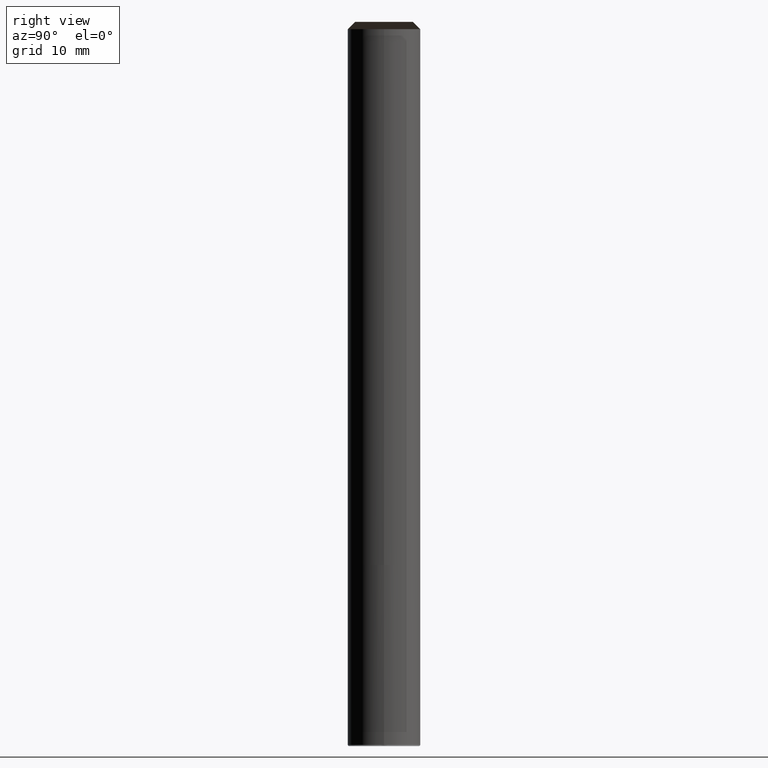
[diagram: clean part render]
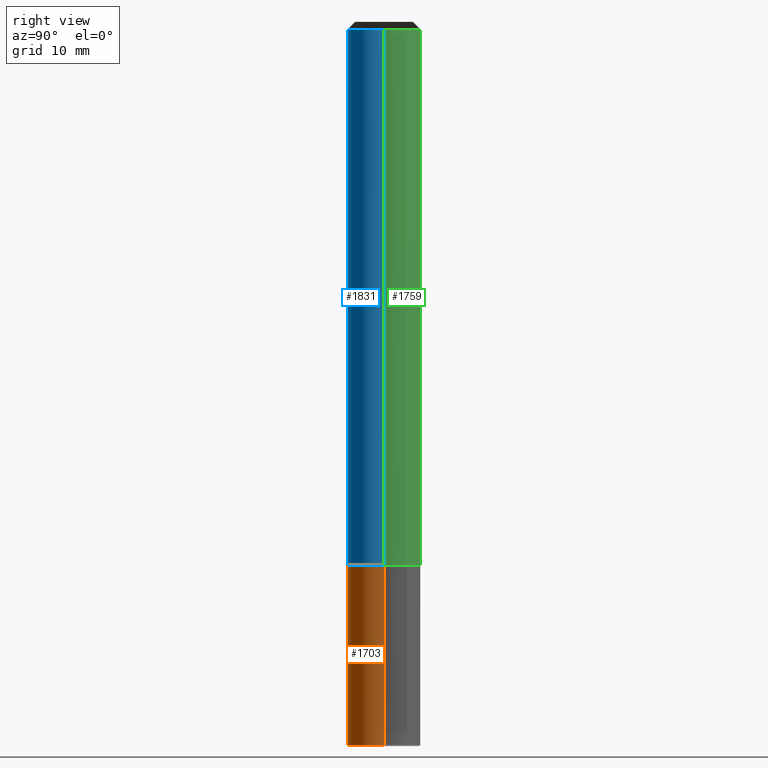
[diagram: same view with three faces highlighted in distinct colors, each labeled with its STEP entity id]
A machine part, right view with three faces highlighted in distinct colors.
Their STEP definitions:

[orange] entity #1703 — the highlighted face is a freeform B-spline surface patch.
#1521=CARTESIAN_POINT('',(3.0,0.0,-14.9));
#1525=CARTESIAN_POINT('',(-3.0,0.0,-14.9));
#1526=CARTESIAN_POINT('',(3.0,0.0,0.0));
#1530=CARTESIAN_POINT('',(-3.0,0.0,0.0));
#1544=CARTESIAN_POINT('',(-3.0,-3.0,-14.9));
#1545=CARTESIAN_POINT('',(0.0,-3.0,-14.9));
#1546=CARTESIAN_POINT('',(3.0,-3.0,-14.9));
#1547=CARTESIAN_POINT('',(-3.0,-3.0,0.0));
#1548=CARTESIAN_POINT('',(0.0,-3.0,0.0));
#1549=CARTESIAN_POINT('',(3.0,-3.0,0.0));
#1684=(
BOUNDED_SURFACE()
B_SPLINE_SURFACE(1,2,(
(#1525,#1544,#1545,#1546,#1521),
(#1530,#1547,#1548,#1549,#1526)
), .UNSPECIFIED.,.F.,.F.,.F.)
B_SPLINE_SURFACE_WITH_KNOTS((2,2),(3,2,3),(
0.0,1.0),(
0.0,0.5,1.0), .UNSPECIFIED.)
GEOMETRIC_REPRESENTATION_ITEM()
RATIONAL_B_SPLINE_SURFACE(((1.0,0.707106781187,1.0,0.707106781187,1.0),
(1.0,0.707106781187,1.0,0.707106781187,1.0)
))
REPRESENTATION_ITEM('')
SURFACE()
);
#1685=(
BOUNDED_CURVE()
B_SPLINE_CURVE(1,(#1530,#1525),.UNSPECIFIED.,.F.,.F.)
B_SPLINE_CURVE_WITH_KNOTS((2,2),
(0.0,1.0),.UNSPECIFIED.)
CURVE()
GEOMETRIC_REPRESENTATION_ITEM()
RATIONAL_B_SPLINE_CURVE((1.0,1.0))
REPRESENTATION_ITEM('')
);
#1686=(
BOUNDED_CURVE()
B_SPLINE_CURVE(2,(#1525,#1544,#1545,#1546,#1521),.UNSPECIFIED.,.F.,.F.)
B_SPLINE_CURVE_WITH_KNOTS((3,2,3),
(0.0,0.5,1.0),.UNSPECIFIED.)
CURVE()
GEOMETRIC_REPRESENTATION_ITEM()
RATIONAL_B_SPLINE_CURVE((1.0,0.707106781187,1.0,0.707106781187,1.0))
REPRESENTATION_ITEM('')
);
#1687=(
BOUNDED_CURVE()
B_SPLINE_CURVE(1,(#1521,#1526),.UNSPECIFIED.,.F.,.F.)
B_SPLINE_CURVE_WITH_KNOTS((2,2),
(0.0,1.0),.UNSPECIFIED.)
CURVE()
GEOMETRIC_REPRESENTATION_ITEM()
RATIONAL_B_SPLINE_CURVE((1.0,1.0))
REPRESENTATION_ITEM('')
);
#1688=(
BOUNDED_CURVE()
B_SPLINE_CURVE(2,(#1526,#1549,#1548,#1547,#1530),.UNSPECIFIED.,.F.,.F.)
B_SPLINE_CURVE_WITH_KNOTS((3,2,3),
(0.0,0.5,1.0),.UNSPECIFIED.)
CURVE()
GEOMETRIC_REPRESENTATION_ITEM()
RATIONAL_B_SPLINE_CURVE((1.0,0.707106781187,1.0,0.707106781187,1.0))
REPRESENTATION_ITEM('')
);
#1689=VERTEX_POINT('',#1521);
#1690=VERTEX_POINT('',#1525);
#1691=VERTEX_POINT('',#1526);
#1692=VERTEX_POINT('',#1530);
#1693=EDGE_CURVE('',#1692,#1690,#1685,.T.);
#1694=EDGE_CURVE('',#1690,#1689,#1686,.T.);
#1695=EDGE_CURVE('',#1689,#1691,#1687,.T.);
#1696=EDGE_CURVE('',#1691,#1692,#1688,.T.);
#1697=ORIENTED_EDGE('',*,*,#1693,.T.);
#1698=ORIENTED_EDGE('',*,*,#1694,.T.);
#1699=ORIENTED_EDGE('',*,*,#1695,.T.);
#1700=ORIENTED_EDGE('',*,*,#1696,.T.);
#1701=EDGE_LOOP('',(#1697,#1698,#1699,#1700));
#1702=FACE_OUTER_BOUND('',#1701,.T.);
#1703=ADVANCED_FACE('',(#1702),#1684,.T.);

[blue] entity #1831 — the highlighted face is a freeform B-spline surface patch.
#1526=CARTESIAN_POINT('',(3.0,0.0,0.0));
#1530=CARTESIAN_POINT('',(-3.0,0.0,0.0));
#1547=CARTESIAN_POINT('',(-3.0,-3.0,0.0));
#1548=CARTESIAN_POINT('',(0.0,-3.0,0.0));
#1549=CARTESIAN_POINT('',(3.0,-3.0,0.0));
#1550=CARTESIAN_POINT('',(3.0,0.0,44.4));
#1554=CARTESIAN_POINT('',(-3.0,0.0,44.4));
#1561=CARTESIAN_POINT('',(-3.0,-3.0,44.4));
#1562=CARTESIAN_POINT('',(0.0,-3.0,44.4));
#1563=CARTESIAN_POINT('',(3.0,-3.0,44.4));
#1812=(
BOUNDED_SURFACE()
B_SPLINE_SURFACE(1,2,(
(#1530,#1547,#1548,#1549,#1526),
(#1554,#1561,#1562,#1563,#1550)
), .UNSPECIFIED.,.F.,.F.,.F.)
B_SPLINE_SURFACE_WITH_KNOTS((2,2),(3,2,3),(
0.0,1.0),(
0.0,0.5,1.0), .UNSPECIFIED.)
GEOMETRIC_REPRESENTATION_ITEM()
RATIONAL_B_SPLINE_SURFACE(((1.0,0.707106781187,1.0,0.707106781187,1.0),
(1.0,0.707106781187,1.0,0.707106781187,1.0)
))
REPRESENTATION_ITEM('')
SURFACE()
);
#1813=(
BOUNDED_CURVE()
B_SPLINE_CURVE(1,(#1554,#1530),.UNSPECIFIED.,.F.,.F.)
B_SPLINE_CURVE_WITH_KNOTS((2,2),
(0.0,1.0),.UNSPECIFIED.)
CURVE()
GEOMETRIC_REPRESENTATION_ITEM()
RATIONAL_B_SPLINE_CURVE((1.0,1.0))
REPRESENTATION_ITEM('')
);
#1814=(
BOUNDED_CURVE()
B_SPLINE_CURVE(2,(#1530,#1547,#1548,#1549,#1526),.UNSPECIFIED.,.F.,.F.)
B_SPLINE_CURVE_WITH_KNOTS((3,2,3),
(0.0,0.5,1.0),.UNSPECIFIED.)
CURVE()
GEOMETRIC_REPRESENTATION_ITEM()
RATIONAL_B_SPLINE_CURVE((1.0,0.707106781187,1.0,0.707106781187,1.0))
REPRESENTATION_ITEM('')
);
#1815=(
BOUNDED_CURVE()
B_SPLINE_CURVE(1,(#1526,#1550),.UNSPECIFIED.,.F.,.F.)
B_SPLINE_CURVE_WITH_KNOTS((2,2),
(0.0,1.0),.UNSPECIFIED.)
CURVE()
GEOMETRIC_REPRESENTATION_ITEM()
RATIONAL_B_SPLINE_CURVE((1.0,1.0))
REPRESENTATION_ITEM('')
);
#1816=(
BOUNDED_CURVE()
B_SPLINE_CURVE(2,(#1550,#1563,#1562,#1561,#1554),.UNSPECIFIED.,.F.,.F.)
B_SPLINE_CURVE_WITH_KNOTS((3,2,3),
(0.0,0.5,1.0),.UNSPECIFIED.)
CURVE()
GEOMETRIC_REPRESENTATION_ITEM()
RATIONAL_B_SPLINE_CURVE((1.0,0.707106781187,1.0,0.707106781187,1.0))
REPRESENTATION_ITEM('')
);
#1817=VERTEX_POINT('',#1526);
#1818=VERTEX_POINT('',#1530);
#1819=VERTEX_POINT('',#1550);
#1820=VERTEX_POINT('',#1554);
#1821=EDGE_CURVE('',#1820,#1818,#1813,.T.);
#1822=EDGE_CURVE('',#1818,#1817,#1814,.T.);
#1823=EDGE_CURVE('',#1817,#1819,#1815,.T.);
#1824=EDGE_CURVE('',#1819,#1820,#1816,.T.);
#1825=ORIENTED_EDGE('',*,*,#1821,.T.);
#1826=ORIENTED_EDGE('',*,*,#1822,.T.);
#1827=ORIENTED_EDGE('',*,*,#1823,.T.);
#1828=ORIENTED_EDGE('',*,*,#1824,.T.);
#1829=EDGE_LOOP('',(#1825,#1826,#1827,#1828));
#1830=FACE_OUTER_BOUND('',#1829,.T.);
#1831=ADVANCED_FACE('',(#1830),#1812,.T.);

[green] entity #1759 — the highlighted face is a freeform B-spline surface patch.
#1526=CARTESIAN_POINT('',(3.0,0.0,0.0));
#1527=CARTESIAN_POINT('',(3.0,3.0,0.0));
#1528=CARTESIAN_POINT('',(0.0,3.0,0.0));
#1529=CARTESIAN_POINT('',(-3.0,3.0,0.0));
#1530=CARTESIAN_POINT('',(-3.0,0.0,0.0));
#1550=CARTESIAN_POINT('',(3.0,0.0,44.4));
#1551=CARTESIAN_POINT('',(3.0,3.0,44.4));
#1552=CARTESIAN_POINT('',(0.0,3.0,44.4));
#1553=CARTESIAN_POINT('',(-3.0,3.0,44.4));
#1554=CARTESIAN_POINT('',(-3.0,0.0,44.4));
#1740=(
BOUNDED_SURFACE()
B_SPLINE_SURFACE(1,2,(
(#1526,#1527,#1528,#1529,#1530),
(#1550,#1551,#1552,#1553,#1554)
), .UNSPECIFIED.,.F.,.F.,.F.)
B_SPLINE_SURFACE_WITH_KNOTS((2,2),(3,2,3),(
0.0,1.0),(
0.0,0.5,1.0), .UNSPECIFIED.)
GEOMETRIC_REPRESENTATION_ITEM()
RATIONAL_B_SPLINE_SURFACE(((1.0,0.707106781187,1.0,0.707106781187,1.0),
(1.0,0.707106781187,1.0,0.707106781187,1.0)
))
REPRESENTATION_ITEM('')
SURFACE()
);
#1741=(
BOUNDED_CURVE()
B_SPLINE_CURVE(2,(#1550,#1551,#1552,#1553,#1554),.UNSPECIFIED.,.F.,.F.)
B_SPLINE_CURVE_WITH_KNOTS((3,2,3),
(0.0,0.5,1.0),.UNSPECIFIED.)
CURVE()
GEOMETRIC_REPRESENTATION_ITEM()
RATIONAL_B_SPLINE_CURVE((1.0,0.707106781187,1.0,0.707106781187,1.0))
REPRESENTATION_ITEM('')
);
#1742=(
BOUNDED_CURVE()
B_SPLINE_CURVE(1,(#1554,#1530),.UNSPECIFIED.,.F.,.F.)
B_SPLINE_CURVE_WITH_KNOTS((2,2),
(0.0,1.0),.UNSPECIFIED.)
CURVE()
GEOMETRIC_REPRESENTATION_ITEM()
RATIONAL_B_SPLINE_CURVE((1.0,1.0))
REPRESENTATION_ITEM('')
);
#1743=(
BOUNDED_CURVE()
B_SPLINE_CURVE(2,(#1530,#1529,#1528,#1527,#1526),.UNSPECIFIED.,.F.,.F.)
B_SPLINE_CURVE_WITH_KNOTS((3,2,3),
(0.0,0.5,1.0),.UNSPECIFIED.)
CURVE()
GEOMETRIC_REPRESENTATION_ITEM()
RATIONAL_B_SPLINE_CURVE((1.0,0.707106781187,1.0,0.707106781187,1.0))
REPRESENTATION_ITEM('')
);
#1744=(
BOUNDED_CURVE()
B_SPLINE_CURVE(1,(#1526,#1550),.UNSPECIFIED.,.F.,.F.)
B_SPLINE_CURVE_WITH_KNOTS((2,2),
(0.0,1.0),.UNSPECIFIED.)
CURVE()
GEOMETRIC_REPRESENTATION_ITEM()
RATIONAL_B_SPLINE_CURVE((1.0,1.0))
REPRESENTATION_ITEM('')
);
#1745=VERTEX_POINT('',#1526);
#1746=VERTEX_POINT('',#1530);
#1747=VERTEX_POINT('',#1550);
#1748=VERTEX_POINT('',#1554);
#1749=EDGE_CURVE('',#1747,#1748,#1741,.T.);
#1750=EDGE_CURVE('',#1748,#1746,#1742,.T.);
#1751=EDGE_CURVE('',#1746,#1745,#1743,.T.);
#1752=EDGE_CURVE('',#1745,#1747,#1744,.T.);
#1753=ORIENTED_EDGE('',*,*,#1749,.T.);
#1754=ORIENTED_EDGE('',*,*,#1750,.T.);
#1755=ORIENTED_EDGE('',*,*,#1751,.T.);
#1756=ORIENTED_EDGE('',*,*,#1752,.T.);
#1757=EDGE_LOOP('',(#1753,#1754,#1755,#1756));
#1758=FACE_OUTER_BOUND('',#1757,.T.);
#1759=ADVANCED_FACE('',(#1758),#1740,.T.);